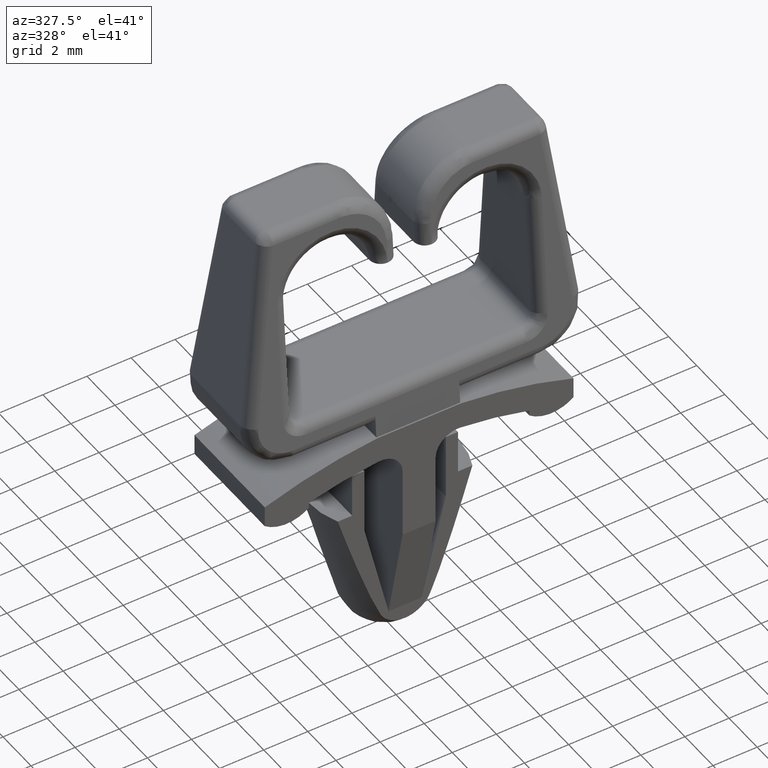
[diagram: clean part render]
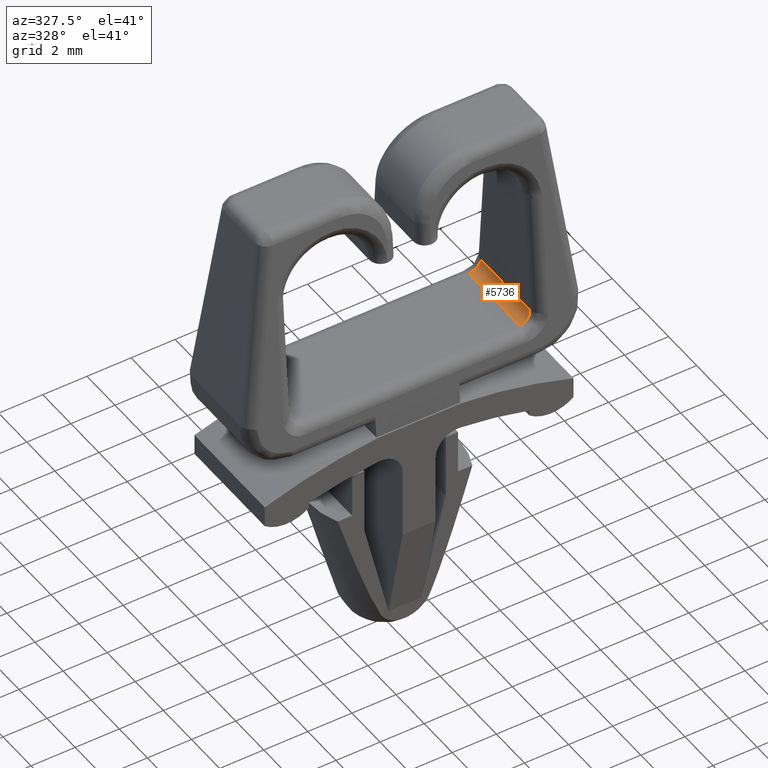
[diagram: same view with one face highlighted and labeled with its STEP entity id]
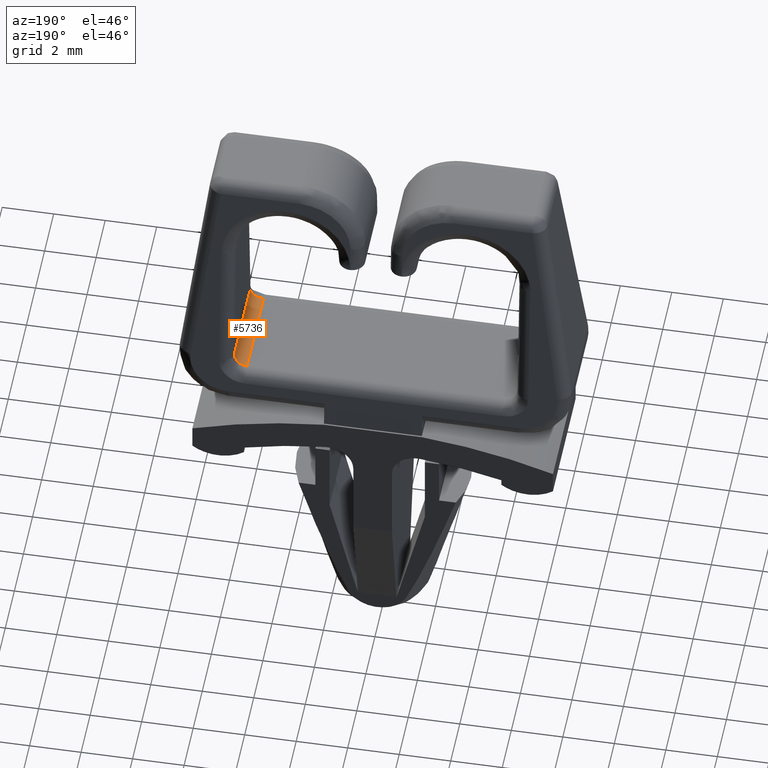
[diagram: same view with one face highlighted and labeled with its STEP entity id]
A machine part, auxiliary view. The second image highlights one B-rep face of the part: STEP entity #5736.
A second angle (auxiliary view) of the same face is appended — the face is thin or edge-on in the first view.
In plain terms, the highlighted face is a freeform B-spline surface patch.
Its self-contained STEP definition (entity closure, byte-faithful):
#703=CARTESIAN_POINT('',(5.500000000000000,1.743963935432635,0.500000000000000));
#704=VERTEX_POINT('',#703);
#942=CARTESIAN_POINT('',(5.0,1.821236615702995,0.0));
#943=VERTEX_POINT('',#942);
#957=CARTESIAN_POINT('',(5.500000000000000,1.743963935432635,0.500000000000000));
#958=CARTESIAN_POINT('',(5.500000000000001,1.821236615702978,2.168404E-016));
#959=CARTESIAN_POINT('',(5.0,1.821236615702995,0.0));
#967=(BOUNDED_CURVE()B_SPLINE_CURVE(2,(#957,#958,#959),.UNSPECIFIED.,.F.,.U.)CURVE()GEOMETRIC_REPRESENTATION_ITEM()QUASI_UNIFORM_CURVE()RATIONAL_B_SPLINE_CURVE((1.0,0.707106781186547,1.0))REPRESENTATION_ITEM(''));
#968=EDGE_CURVE('',#704,#943,#967,.T.);
#3014=CARTESIAN_POINT('',(5.0,-1.821236615702995,0.0));
#3015=VERTEX_POINT('',#3014);
#3461=CARTESIAN_POINT('',(5.500000000000000,-1.743963935432635,0.500000000000000));
#3462=VERTEX_POINT('',#3461);
#3478=CARTESIAN_POINT('',(5.0,-1.821236615702995,0.0));
#3479=CARTESIAN_POINT('',(5.500000000000000,-1.821236615702978,2.168404E-016));
#3480=CARTESIAN_POINT('',(5.500000000000000,-1.743963935432635,0.500000000000000));
#3488=(BOUNDED_CURVE()B_SPLINE_CURVE(2,(#3478,#3479,#3480),.UNSPECIFIED.,.F.,.U.)CURVE()GEOMETRIC_REPRESENTATION_ITEM()QUASI_UNIFORM_CURVE()RATIONAL_B_SPLINE_CURVE((1.0,0.707106781186548,1.0))REPRESENTATION_ITEM(''));
#3489=EDGE_CURVE('',#3015,#3462,#3488,.T.);
#5701=CARTESIAN_POINT('',(5.0,1.821236615702995,0.0));
#5702=CARTESIAN_POINT('',(5.0,-1.821236615702995,0.0));
#5703=QUASI_UNIFORM_CURVE('',1,(#5701,#5702),.UNSPECIFIED.,.F.,.U.);
#5704=EDGE_CURVE('',#943,#3015,#5703,.T.);
#5712=CARTESIAN_POINT('',(5.499980961532086,1.912298446488145,0.504363267749186));
#5713=CARTESIAN_POINT('',(5.499980961532086,-1.914574992257774,0.504363267749186));
#5714=CARTESIAN_POINT('',(5.504659993339773,1.912298446488145,-0.031800671005877));
#5715=CARTESIAN_POINT('',(5.504659993339773,-1.914574992257774,-0.031800671005877));
#5716=CARTESIAN_POINT('',(4.969475730232571,1.912298446488145,0.000932600789066));
#5717=CARTESIAN_POINT('',(4.969475730232571,-1.914574992257774,0.000932600789066));
#5725=(BOUNDED_SURFACE()B_SPLINE_SURFACE(1,2,((#5712,#5714,#5716),(#5713,#5715,#5717)),.UNSPECIFIED.,.F.,.F.,.U.)B_SPLINE_SURFACE_WITH_KNOTS((2,2),(3,3),(0.0,3.826873438745919),(0.0,1.0),.UNSPECIFIED.)GEOMETRIC_REPRESENTATION_ITEM()RATIONAL_B_SPLINE_SURFACE(((1.0,0.681998360062499,1.0),(1.0,0.681998360062499,1.0)))REPRESENTATION_ITEM('')SURFACE());
#5726=CARTESIAN_POINT('',(5.500000000000000,1.743963935432635,0.500000000000000));
#5727=CARTESIAN_POINT('',(5.500000000000000,-1.743963935432635,0.500000000000000));
#5728=QUASI_UNIFORM_CURVE('',1,(#5726,#5727),.UNSPECIFIED.,.F.,.U.);
#5729=EDGE_CURVE('',#704,#3462,#5728,.T.);
#5730=ORIENTED_EDGE('',*,*,#5729,.F.);
#5731=ORIENTED_EDGE('',*,*,#968,.T.);
#5732=ORIENTED_EDGE('',*,*,#5704,.T.);
#5733=ORIENTED_EDGE('',*,*,#3489,.T.);
#5734=EDGE_LOOP('',(#5730,#5731,#5732,#5733));
#5735=FACE_OUTER_BOUND('',#5734,.T.);
#5736=ADVANCED_FACE('',(#5735),#5725,.F.);